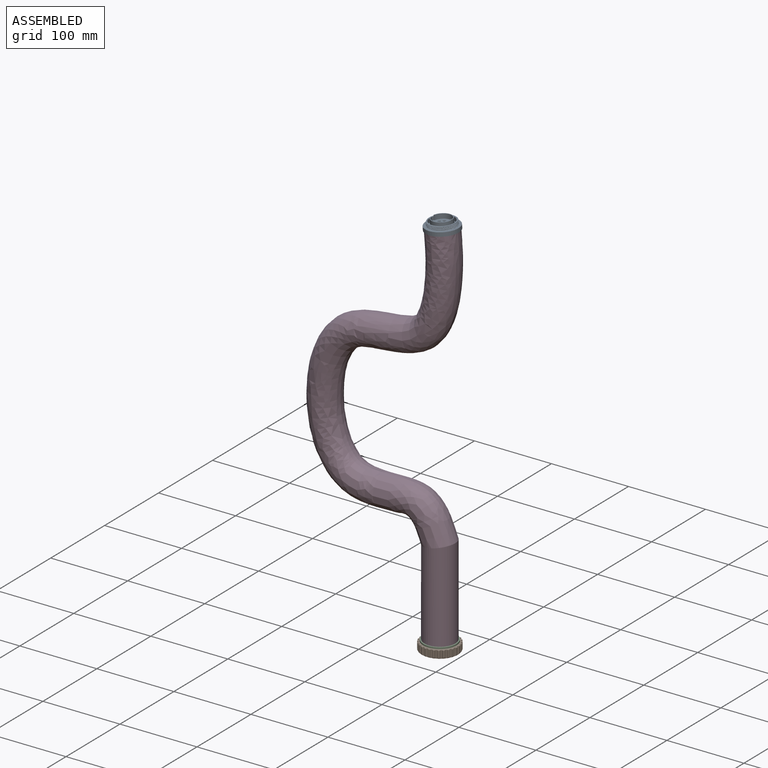
[diagram: assembled view]
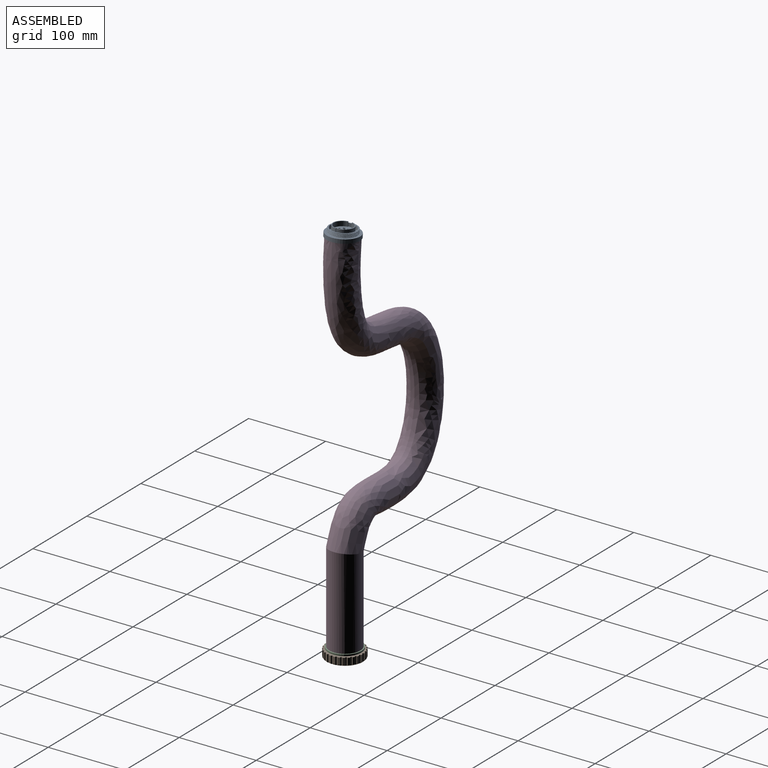
[diagram: assembled view, second angle]
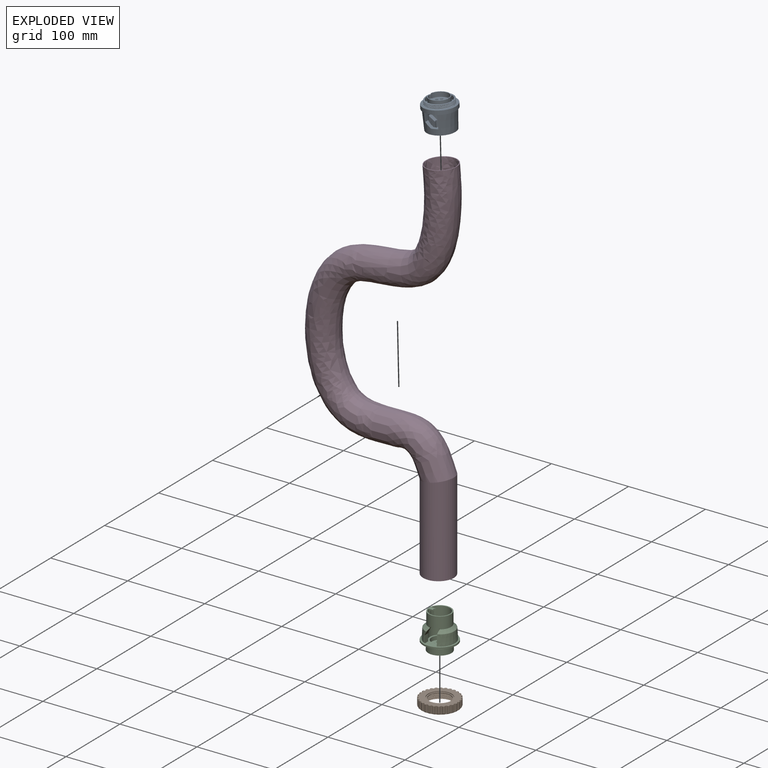
[diagram: exploded view]
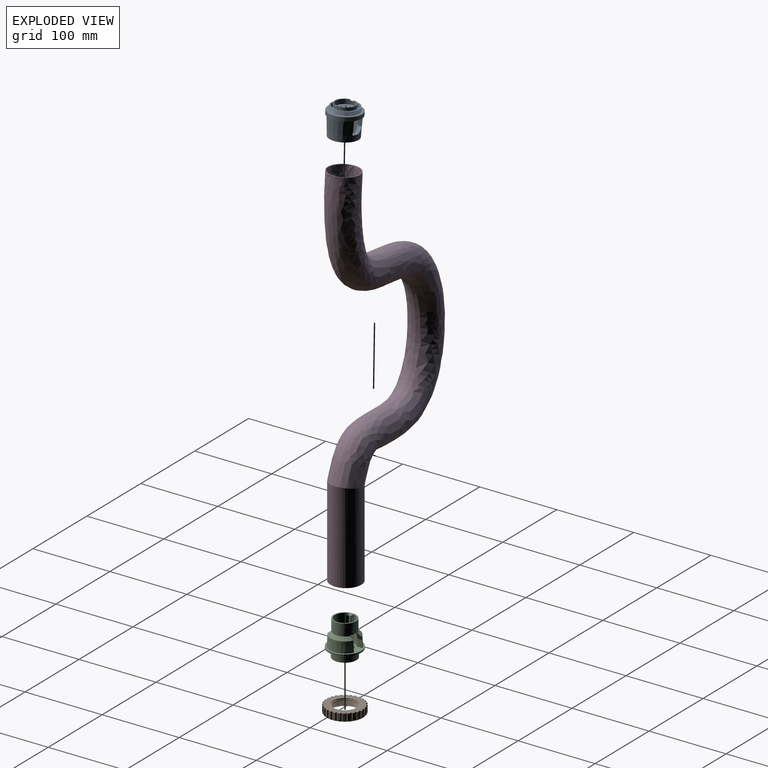
[diagram: exploded view, second angle]
ASSEMBLY  parts=4 mates=3
PART A: 95 faces, bbox 43.4x43.4x39.4 mm
  f0: plane 24.84x24.01mm, normal (0,0,1), area 356.8mm2, adj f4,f5,f11,f16,f17,f18,f19,f20
  f1: cylinder r=10.74mm len=14.33mm, axis (0,0,1), area 78.4mm2, adj f2,f7,f53,f62
  f2: plane 22.98x6mm, normal (0,0,-1), area 69.8mm2, adj f1,f6,f53,f62
  f3: plane 12.22x6.12mm, normal (1,0,0), area 49.3mm2, adj f25,f30,f31,f33,f49,f50,f52
  f4: cylinder r=12mm len=23.48mm, axis (0,0,1), area 196.2mm2, adj f0,f14,f17,f19
  f5: cylinder r=12mm len=23.47mm, axis (0,0,1), area 195.8mm2, adj f0,f14,f18,f20
  f6: cylinder r=14mm len=28mm, axis (0,0,-1), area 1312.5mm2, adj f2,f25,f28,f29,f33,f47,f53,f54
  f7: plane 21.49x21.49mm, normal (0,0,-1), area 331.1mm2, adj f1,f34,f35,f36,f37,f38,f39,f40
  f8: cylinder r=17.5mm len=35mm, axis (0,0,1), area 167.5mm2, adj f9,f10,f13,f26
  f9: bspline ~40.41x35mm, area 370.9mm2, adj f8,f10,f13,f26
  f10: bspline ~40.41x35mm, area 370.8mm2, adj f8,f9,f13,f26
  f11: cylinder r=13mm len=26mm, axis (0,0,1), area 609.1mm2, adj f0,f14,f15,f19,f20,f22,f23,f24
  f12: cylinder r=15.5mm len=31mm, axis (0,0,1), area 486.9mm2, adj f13,f15
  f13: plane 35.23x34.94mm, normal (0,0,1), area 171.7mm2, adj f8,f9,f10,f12
  f14: plane 26.01x25.78mm, normal (0,0,1), area 75.8mm2, adj f4,f5,f11,f16,f17,f18,f19,f20
  f15: plane 31x31mm, normal (0,0,1), area 223.8mm2, adj f11,f12
  f16: plane 6x5mm, normal (0,1,0), area 30mm2, adj f0,f14,f17,f18
  f17: plane 6x0.75mm, normal (-1,0,0), area 4.5mm2, adj f0,f4,f14,f16
  f18: plane 6x0.73mm, normal (1,0,0), area 4.4mm2, adj f0,f5,f14,f16
  f19: plane 6x1.02mm, normal (1,0,0), area 6.1mm2, adj f0,f4,f11,f14
  f20: plane 6x1.02mm, normal (-1,0,0), area 6.1mm2, adj f0,f5,f11,f14
  f21: plane 7x2mm, normal (0.01,-1,0), area 14mm2, adj f14,f22,f23,f24
  f22: plane 7x0.97mm, normal (1,0,0), area 6.8mm2, adj f11,f14,f21,f24
  f23: plane 7x0.98mm, normal (-1,-0.02,0), area 6.9mm2, adj f11,f14,f21,f24
  f24: plane 2.02x1.03mm, normal (0,0,1), area 2mm2, adj f11,f21,f22,f23
  f25: plane 35.38x35.38mm, normal (0,0,-1), area 405.4mm2, adj f3,f6,f27,f28,f29,f30,f31,f32
  f26: plane 42.74x42.74mm, normal (0,0,1), area 459mm2, adj f8,f9,f10,f45
  f27: plane 12.94x1.02mm, normal (-1,0,0), area 12.8mm2, adj f25,f28,f32,f33
  f28: plane 13.65x1.01mm, normal (-1,0,0), area 13.5mm2, adj f6,f25,f27,f33
  f29: plane 13.65x1.02mm, normal (1,0,0), area 13.6mm2, adj f6,f25,f30,f33
  f30: plane 12.93x1.02mm, normal (1,0,0), area 12.8mm2, adj f3,f25,f29,f33,f51
  f31: cylinder r=3.62mm len=7.93mm, axis (0,0,-1), area 43.8mm2, adj f3,f25,f32,f33
  f32: plane 12.22x6.12mm, normal (-1,0,0), area 49.4mm2, adj f25,f27,f31,f33,f49,f50,f51,f52
  f33: plane 9.79x7.27mm, normal (0,-0.57,0.82), area 46.5mm2, adj f3,f6,f27,f28,f29,f30,f31,f32
  f34: cylinder r=1mm len=6.5mm, axis (0,0,1), area 40.8mm2, adj f7,f94
  f35: cylinder r=1mm len=6.5mm, axis (0,0,1), area 40.8mm2, adj f7,f84
  f36: cylinder r=1mm len=6.5mm, axis (0,0,1), area 40.8mm2, adj f7,f78
  f37: cylinder r=1mm len=6.5mm, axis (0,0,1), area 40.8mm2, adj f7,f88
  f38: cylinder r=1mm len=6.5mm, axis (0,0,1), area 40.8mm2, adj f7,f92
  f39: cylinder r=1mm len=6.5mm, axis (0,0,1), area 40.8mm2, adj f7,f82
  f40: cylinder r=1mm len=6.5mm, axis (0,0,1), area 40.8mm2, adj f7,f76
  f41: cylinder r=1mm len=6.5mm, axis (0,0,1), area 40.8mm2, adj f7,f86
  f42: cylinder r=1mm len=6.5mm, axis (0,0,1), area 40.8mm2, adj f7,f80
  f43: cylinder r=1mm len=6.5mm, axis (0,0,1), area 40.8mm2, adj f7,f90
  f44: plane 42.01x42.01mm, normal (0,0,-1), area 251.3mm2, adj f45,f55,f60,f66,f71
  f45: cylinder r=21mm len=42mm, axis (0,0,1), area 659.7mm2, adj f26,f44
  f46: cylinder r=10.74mm len=14.34mm, axis (0,0,1), area 78.4mm2, adj f7,f47,f54,f61
  f47: plane 22.98x6mm, normal (0,0,-1), area 69.8mm2, adj f6,f46,f54,f61
  f48: bspline ~1x0.04mm, area 0mm2, adj f0,f11
  f49: plane 5x2.07mm, normal (0,0,1), area 10.3mm2, adj f3,f32,f51,f52
  f50: plane 5x2.07mm, normal (0,0,-1), area 10.3mm2, adj f3,f32,f51,f52
  f51: plane 5.97x5mm, normal (0,-1,0), area 29.9mm2, adj f30,f32,f49,f50
  f52: plane 5.97x5mm, normal (0,1,0), area 29.9mm2, adj f3,f32,f49,f50
  f53: plane 12.03x10.19mm, normal (0,-1,0), area 85.9mm2, adj f1,f2,f6,f55,f56,f65
  f54: plane 17.77x10.33mm, normal (0,1,0), area 113.2mm2, adj f6,f46,f47,f55,f57,f72
  f55: plane 16.07x11.91mm, normal (0,0,-1), area 140.5mm2, adj f7,f44,f53,f54
  f56: plane 8.28x6.92mm, normal (0,-0.57,0.82), area 43.3mm2, adj f6,f53,f57,f64
  f57: plane 8x6.59mm, normal (0,0,1), area 34.2mm2, adj f6,f54,f56,f63
  f58: plane 8x6.59mm, normal (0,0,1), area 34.2mm2, adj f6,f59,f61,f69
  f59: plane 8.28x6.92mm, normal (0,-0.57,0.82), area 43.3mm2, adj f6,f58,f62,f68
  f60: plane 16.07x11.91mm, normal (0,0,-1), area 140.5mm2, adj f7,f44,f61,f62
  f61: plane 17.77x10.33mm, normal (0,1,0), area 113.2mm2, adj f6,f46,f47,f58,f60,f70
  f62: plane 12.03x10.19mm, normal (0,-1,0), area 85.9mm2, adj f1,f2,f6,f59,f60,f67
  f63: bspline ~8.21x2.36mm, area 4.2mm2, adj f57,f64,f72,f74
  f64: bspline ~8.22x5.63mm, area 5mm2, adj f56,f63,f65,f74
  f65: bspline ~11.93x1.14mm, area 6mm2, adj f53,f64,f66,f74
  f66: cone r=19mm half-angle=87deg, axis (0,0,-1), area 21.9mm2, adj f44,f65,f67,f74
  f67: bspline ~11.93x1.14mm, area 6mm2, adj f62,f66,f68,f74
  f68: bspline ~8.22x5.63mm, area 5mm2, adj f59,f67,f69,f74
  f69: bspline ~8.21x2.36mm, area 4.2mm2, adj f58,f68,f70,f74
  f70: bspline ~17.53x1.47mm, area 8.8mm2, adj f61,f69,f71,f74
  f71: cone r=19mm half-angle=87deg, axis (0,0,-1), area 21.9mm2, adj f44,f70,f72,f74
  f72: bspline ~17.54x1.47mm, area 8.8mm2, adj f54,f63,f71,f74
  f73: cone r=17.69mm half-angle=87deg, axis (0,0,-1), area 56.4mm2, adj f25,f74
  f74: cone r=19.5mm half-angle=3deg, axis (0,0,1), area 2416.1mm2, adj f63,f64,f65,f66,f67,f68,f69,f70
  f75: cylinder r=1.75mm len=3.5mm, axis (0,0,1), area 5.5mm2, adj f0,f76
  f76: plane 3.5x3.5mm, normal (0,0,1), area 6.5mm2, adj f40,f75
  f77: cylinder r=1.75mm len=3.5mm, axis (0,0,1), area 5.5mm2, adj f0,f78
  f78: plane 3.5x3.5mm, normal (0,0,1), area 6.5mm2, adj f36,f77
  f79: cylinder r=1.75mm len=3.5mm, axis (0,0,1), area 5.5mm2, adj f0,f80
  f80: plane 3.5x3.5mm, normal (0,0,1), area 6.5mm2, adj f42,f79
  f81: cylinder r=1.75mm len=3.5mm, axis (0,0,1), area 5.5mm2, adj f0,f82
  f82: plane 3.5x3.5mm, normal (0,0,1), area 6.5mm2, adj f39,f81
  f83: cylinder r=1.75mm len=3.5mm, axis (0,0,1), area 5.5mm2, adj f0,f84
  f84: plane 3.5x3.5mm, normal (0,0,1), area 6.5mm2, adj f35,f83
  f85: cylinder r=1.75mm len=3.5mm, axis (0,0,1), area 5.5mm2, adj f0,f86
  f86: plane 3.5x3.5mm, normal (0,0,1), area 6.5mm2, adj f41,f85
  f87: cylinder r=1.75mm len=3.5mm, axis (0,0,1), area 5.5mm2, adj f0,f88
  f88: plane 3.5x3.5mm, normal (0,0,1), area 6.5mm2, adj f37,f87
  f89: cylinder r=1.75mm len=3.5mm, axis (0,0,1), area 5.5mm2, adj f0,f90
  f90: plane 3.5x3.5mm, normal (0,0,1), area 6.5mm2, adj f43,f89
  f91: cylinder r=1.75mm len=3.5mm, axis (0,0,1), area 5.5mm2, adj f0,f92
  f92: plane 3.5x3.5mm, normal (0,0,1), area 6.5mm2, adj f38,f91
  f93: cylinder r=1.75mm len=3.5mm, axis (0,0,1), area 5.5mm2, adj f0,f94
  f94: plane 3.5x3.5mm, normal (0,0,1), area 6.5mm2, adj f34,f93
PART B: 72 faces, bbox 53.1x53.1x11.3 mm
  f0: torus R=22.22mm, axis (0,0,1), area 268.9mm2, adj f1,f2,f3,f4,f5,f6,f7,f8
  f1: cylinder r=24.22mm len=8mm, axis (0,0,1), area 19.1mm2, adj f0,f39,f70,f71
  f2: cylinder r=24.22mm len=8mm, axis (0,0,1), area 19.1mm2, adj f0,f39,f69,f70
  f3: cylinder r=24.22mm len=8mm, axis (0,0,1), area 19.1mm2, adj f0,f39,f68,f69
  f4: cylinder r=24.22mm len=8mm, axis (0,0,1), area 19.1mm2, adj f0,f39,f67,f68
  f5: cylinder r=24.22mm len=8mm, axis (0,0,1), area 19.1mm2, adj f0,f39,f66,f67
  f6: cylinder r=24.22mm len=8mm, axis (0,0,1), area 19.1mm2, adj f0,f39,f65,f66
  f7: cylinder r=24.22mm len=8mm, axis (0,0,1), area 19.1mm2, adj f0,f39,f64,f65
  f8: cylinder r=24.22mm len=8mm, axis (0,0,1), area 19.1mm2, adj f0,f39,f63,f64
  f9: cylinder r=24.22mm len=8mm, axis (0,0,1), area 19.1mm2, adj f0,f39,f62,f63
  f10: cylinder r=24.22mm len=8mm, axis (0,0,1), area 19.1mm2, adj f0,f39,f61,f62
  f11: cylinder r=24.22mm len=8mm, axis (0,0,1), area 19.1mm2, adj f0,f39,f60,f61
  f12: cylinder r=24.22mm len=8mm, axis (0,0,1), area 19.1mm2, adj f0,f39,f59,f60
  f13: cylinder r=24.22mm len=8mm, axis (0,0,1), area 19.1mm2, adj f0,f39,f58,f59
  f14: cylinder r=24.22mm len=8mm, axis (0,0,1), area 19.1mm2, adj f0,f39,f57,f58
  f15: cylinder r=24.22mm len=8mm, axis (0,0,1), area 19.1mm2, adj f0,f39,f56,f57
  f16: cylinder r=24.22mm len=8mm, axis (0,0,1), area 19.1mm2, adj f0,f39,f55,f56
  f17: cylinder r=24.22mm len=8mm, axis (0,0,1), area 19.1mm2, adj f0,f39,f54,f55
  f18: cylinder r=24.22mm len=8mm, axis (0,0,1), area 19.1mm2, adj f0,f39,f53,f54
  f19: cylinder r=24.22mm len=8mm, axis (0,0,1), area 19.1mm2, adj f0,f39,f52,f53
  f20: cylinder r=24.22mm len=8mm, axis (0,0,1), area 19.1mm2, adj f0,f39,f51,f52
  f21: cylinder r=24.22mm len=8mm, axis (0,0,1), area 19.1mm2, adj f0,f39,f50,f51
  f22: cylinder r=24.22mm len=8mm, axis (0,0,1), area 19.1mm2, adj f0,f39,f49,f50
  f23: cylinder r=24.22mm len=8mm, axis (0,0,1), area 19.1mm2, adj f0,f39,f48,f49
  f24: cylinder r=24.22mm len=8mm, axis (0,0,1), area 19.1mm2, adj f0,f39,f47,f48
  f25: cylinder r=24.22mm len=8mm, axis (0,0,1), area 19.1mm2, adj f0,f39,f46,f47
  f26: cylinder r=24.22mm len=8mm, axis (0,0,1), area 19.1mm2, adj f0,f39,f45,f46
  f27: cylinder r=24.22mm len=8mm, axis (0,0,1), area 19.1mm2, adj f0,f39,f44,f45
  f28: cylinder r=24.22mm len=8mm, axis (0,0,1), area 19.1mm2, adj f0,f39,f44,f71
  f29: cylinder r=17.22mm len=34.44mm, axis (0,0,1), area 97.1mm2, adj f33,f35,f41,f42,f43
  f30: cylinder r=17.22mm len=34.44mm, axis (0,0,1), area 52.5mm2, adj f31,f34,f40,f42,f43
  f31: cylinder r=17.22mm len=34.44mm, axis (0,0,1), area 52.7mm2, adj f30,f32,f42,f43
  f32: cylinder r=17.22mm len=34.44mm, axis (0,0,1), area 52.7mm2, adj f31,f33,f42,f43
  f33: cylinder r=17.22mm len=34.44mm, axis (0,0,1), area 52.7mm2, adj f29,f32,f42,f43
  f34: cylinder r=17.22mm len=17.64mm, axis (0,0,1), area 5.5mm2, adj f30,f40,f43
  f35: plane 34.44x34.44mm, normal (0,0,-1), area 337.6mm2, adj f29,f36
  f36: cylinder r=13.75mm len=27.5mm, axis (0,0,1), area 86.4mm2, adj f35,f37
  f37: plane 30.5x30.5mm, normal (0,0,1), area 136.7mm2, adj f36,f38
  f38: cylinder r=15.25mm len=30.5mm, axis (0,0,1), area 95.8mm2, adj f37,f39
  f39: plane 48.34x48.34mm, normal (0,0,1), area 1011.3mm2, adj f1,f2,f3,f4,f5,f6,f7,f8
  f40: plane 45.13x45.13mm, normal (0,0,-1), area 583.1mm2, adj f0,f30,f34,f42,f43
  f41: plane 1.1x0.93mm, normal (0.25,-0.97,0), area 0.5mm2, adj f29,f42,f43
  f42: bspline ~41.97x36.35mm, area 589.1mm2, adj f29,f30,f31,f32,f33,f40,f41,f43
  f43: bspline ~41.97x36.35mm, area 546.6mm2, adj f29,f30,f31,f32,f33,f34,f40,f41
  f44: cylinder r=1.53mm len=9.94mm, axis (0,0,1), area 45mm2, adj f0,f27,f28,f39
  f45: cylinder r=1.53mm len=9.94mm, axis (0,0,1), area 45mm2, adj f0,f26,f27,f39
  f46: cylinder r=1.53mm len=9.94mm, axis (0,0,1), area 45mm2, adj f0,f25,f26,f39
  f47: cylinder r=1.53mm len=9.94mm, axis (0,0,1), area 45mm2, adj f0,f24,f25,f39
  f48: cylinder r=1.53mm len=9.94mm, axis (0,0,1), area 45mm2, adj f0,f23,f24,f39
  f49: cylinder r=1.53mm len=9.94mm, axis (0,0,1), area 45mm2, adj f0,f22,f23,f39
  f50: cylinder r=1.53mm len=9.94mm, axis (0,0,1), area 45mm2, adj f0,f21,f22,f39
  f51: cylinder r=1.53mm len=9.94mm, axis (0,0,1), area 45mm2, adj f0,f20,f21,f39
  f52: cylinder r=1.53mm len=9.94mm, axis (0,0,1), area 45mm2, adj f0,f19,f20,f39
  f53: cylinder r=1.53mm len=9.94mm, axis (0,0,1), area 45mm2, adj f0,f18,f19,f39
  f54: cylinder r=1.53mm len=9.94mm, axis (0,0,1), area 45mm2, adj f0,f17,f18,f39
  f55: cylinder r=1.53mm len=9.94mm, axis (0,0,1), area 45mm2, adj f0,f16,f17,f39
  f56: cylinder r=1.53mm len=9.94mm, axis (0,0,1), area 45mm2, adj f0,f15,f16,f39
  f57: cylinder r=1.53mm len=9.94mm, axis (0,0,1), area 45mm2, adj f0,f14,f15,f39
  f58: cylinder r=1.53mm len=9.94mm, axis (0,0,1), area 45mm2, adj f0,f13,f14,f39
  f59: cylinder r=1.53mm len=9.94mm, axis (0,0,1), area 45mm2, adj f0,f12,f13,f39
  f60: cylinder r=1.53mm len=9.94mm, axis (0,0,1), area 45mm2, adj f0,f11,f12,f39
  f61: cylinder r=1.53mm len=9.94mm, axis (0,0,1), area 45mm2, adj f0,f10,f11,f39
  f62: cylinder r=1.53mm len=9.94mm, axis (0,0,1), area 45mm2, adj f0,f9,f10,f39
  f63: cylinder r=1.53mm len=9.94mm, axis (0,0,1), area 45mm2, adj f0,f8,f9,f39
  f64: cylinder r=1.53mm len=9.94mm, axis (0,0,1), area 45mm2, adj f0,f7,f8,f39
  f65: cylinder r=1.53mm len=9.94mm, axis (0,0,1), area 42.1mm2, adj f0,f6,f7,f39
  f66: cylinder r=1.53mm len=9.94mm, axis (0,0,1), area 45mm2, adj f0,f5,f6,f39
  f67: cylinder r=1.53mm len=9.94mm, axis (0,0,1), area 45mm2, adj f0,f4,f5,f39
  f68: cylinder r=1.53mm len=9.94mm, axis (0,0,1), area 45mm2, adj f0,f3,f4,f39
  f69: cylinder r=1.53mm len=9.94mm, axis (0,0,1), area 45mm2, adj f0,f2,f3,f39
  f70: cylinder r=1.53mm len=9.94mm, axis (0,0,1), area 45mm2, adj f0,f1,f2,f39
  f71: cylinder r=1.53mm len=9.94mm, axis (0,0,1), area 45mm2, adj f0,f1,f28,f39
PART C: 68 faces, bbox 43.2x43.2x45.9 mm
  f0: plane 29x29mm, normal (0,0,1), area 156.4mm2, adj f3,f4,f6,f37,f65
  f1: cone r=19.5mm half-angle=3deg, axis (0,0,-1), area 597.4mm2, adj f56,f58,f61,f67
  f2: cone r=19.5mm half-angle=3deg, axis (0,0,-1), area 616mm2, adj f53,f54,f55,f57,f61,f66
  f3: plane 21.1x6.45mm, normal (1,0,0), area 88.7mm2, adj f0,f6,f37,f38,f41,f42,f43,f44
  f4: plane 21.1x6.45mm, normal (-1,0,0), area 88.7mm2, adj f0,f6,f37,f38,f41,f42,f43,f44
  f5: plane 36.72x26mm, normal (0,0,1), area 348.9mm2, adj f6,f40,f45,f48,f49,f52,f63,f64
  f6: cylinder r=13mm len=34mm, axis (0,0,1), area 2051.4mm2, adj f0,f3,f4,f5,f38,f45,f46,f47
  f7: plane 27x26.75mm, normal (0,0,-1), area 202mm2, adj f15,f16,f17,f18,f20,f21,f22,f23
  f8: plane 37.93x37.93mm, normal (0,0,-1), area 423.3mm2, adj f9,f59
  f9: cylinder r=15mm len=30mm, axis (0,0,1), area 107.1mm2, adj f8,f10
  f10: plane 30x30mm, normal (0,0,-1), area 175.9mm2, adj f9,f11
  f11: cylinder r=13mm len=26mm, axis (0,0,1), area 163.4mm2, adj f10,f12
  f12: plane 30x30mm, normal (0,0,1), area 175.9mm2, adj f11,f13
  f13: cylinder r=15mm len=30mm, axis (0,0,1), area 706.9mm2, adj f12,f14
  f14: plane 30x30mm, normal (0,0,-1), area 471.2mm2, adj f13,f15,f20,f21,f22,f23,f24,f25
  f15: cylinder r=13.5mm len=27mm, axis (0,0,1), area 442.3mm2, adj f7,f14,f17,f18,f19,f20,f21
  f16: plane 5x1.5mm, normal (0,1,0), area 7.5mm2, adj f7,f17,f18,f19
  f17: plane 5x1.48mm, normal (1,0,0), area 7.4mm2, adj f7,f15,f16,f19
  f18: plane 5x1.48mm, normal (-1,0,0), area 7.4mm2, adj f7,f15,f16,f19
  f19: plane 1.5x1.5mm, normal (0,0,-1), area 2.2mm2, adj f15,f16,f17,f18
  f20: plane 5.64x4.07mm, normal (-1,0,0), area 22.9mm2, adj f7,f14,f15,f22
  f21: plane 5.64x4.07mm, normal (1,0,0), area 22.9mm2, adj f7,f14,f15,f24
  f22: plane 5.64x3.06mm, normal (0,1,0), area 17.3mm2, adj f7,f14,f20,f23
  f23: cylinder r=10.75mm len=19.18mm, axis (0,0,-1), area 134.3mm2, adj f7,f14,f22,f36
  f24: plane 5.64x3.06mm, normal (0,1,0), area 17.3mm2, adj f7,f14,f21,f25
  f25: cylinder r=10.75mm len=19.18mm, axis (0,0,-1), area 134.3mm2, adj f7,f14,f24,f36
  f26: cylinder r=1mm len=6.64mm, axis (0,0,-1), area 41.7mm2, adj f14,f39
  f27: cylinder r=1mm len=6.64mm, axis (0,0,-1), area 41.7mm2, adj f14,f39
  f28: cylinder r=1mm len=6.64mm, axis (0,0,-1), area 41.7mm2, adj f14,f39
  f29: cylinder r=1mm len=6.64mm, axis (0,0,-1), area 41.7mm2, adj f14,f39
  f30: cylinder r=1mm len=6.64mm, axis (0,0,-1), area 41.7mm2, adj f14,f39
  f31: cylinder r=1mm len=6.64mm, axis (0,0,-1), area 41.7mm2, adj f14,f39
  f32: cylinder r=1mm len=6.64mm, axis (0,0,-1), area 41.7mm2, adj f14,f39
  f33: cylinder r=1mm len=6.64mm, axis (0,0,-1), area 41.7mm2, adj f14,f39
  f34: cylinder r=1mm len=6.64mm, axis (0,0,-1), area 41.7mm2, adj f14,f39
  f35: cylinder r=1mm len=6.64mm, axis (0,0,-1), area 41.7mm2, adj f14,f39
  f36: plane 7.99x5.64mm, normal (0,-1,0), area 45.1mm2, adj f7,f14,f23,f25
  f37: extruded ~13.39x5mm, area 78.5mm2, adj f0,f3,f4,f38
  f38: plane 11.59x6.69mm, normal (0,-0.87,-0.5), area 53.6mm2, adj f3,f4,f6,f37
  f39: plane 21.48x21.48mm, normal (0,0,1), area 331mm2, adj f26,f27,f28,f29,f30,f31,f32,f33
  f40: cylinder r=10.74mm len=21.48mm, axis (0,0,-1), area 337.4mm2, adj f5,f39
  f41: plane 5.13x5mm, normal (0,-1,0), area 25.7mm2, adj f3,f4,f42,f43
  f42: plane 5x2.21mm, normal (0,0,1), area 11.1mm2, adj f3,f4,f41,f44
  f43: plane 5x2.21mm, normal (0,0,-1), area 11.1mm2, adj f3,f4,f41,f44
  f44: plane 5.13x5mm, normal (0,1,0), area 25.7mm2, adj f3,f4,f42,f43
  f45: plane 20.25x7.11mm, normal (0,1,0), area 115.2mm2, adj f5,f6,f46,f58,f64,f65,f67
  f46: plane 10x4.25mm, normal (0,0,-1), area 15.8mm2, adj f6,f45,f47,f65
  f47: plane 10.52x7.39mm, normal (0,-0.87,-0.5), area 54.8mm2, adj f6,f46,f48,f53,f65,f66
  f48: plane 9.61x6.88mm, normal (0,-1,0), area 63.4mm2, adj f5,f6,f47,f54,f64
  f49: plane 9.61x6.88mm, normal (0,-1,0), area 63.4mm2, adj f5,f6,f50,f57,f63
  f50: plane 10.52x7.39mm, normal (0,-0.87,-0.5), area 54.8mm2, adj f6,f49,f51,f55,f65,f66
  f51: plane 10x4.25mm, normal (0,0,-1), area 15.8mm2, adj f6,f50,f52,f65
  f52: plane 20.25x7.11mm, normal (0,1,0), area 115.2mm2, adj f5,f6,f51,f56,f63,f65,f67
  f53: bspline ~5.93x3.62mm, area 3.3mm2, adj f2,f47,f54,f66
  f54: bspline ~9.63x1.01mm, area 4.4mm2, adj f2,f48,f53,f61,f64
  f55: bspline ~5.93x3.62mm, area 3.3mm2, adj f2,f50,f57,f66
  f56: bspline ~20.03x1.62mm, area 7.2mm2, adj f1,f52,f61,f63,f67
  f57: bspline ~9.63x1.01mm, area 4.4mm2, adj f2,f49,f55,f61,f63
  f58: bspline ~20.03x1.62mm, area 7.2mm2, adj f1,f45,f61,f64,f67
  f59: cone r=18.97mm half-angle=87deg, axis (0,0,1), area 60.4mm2, adj f8,f62
  f60: cylinder r=21.47mm len=42.93mm, axis (0,0,1), area 269.7mm2, adj f61,f62
  f61: plane 42.93x42.93mm, normal (0,0,1), area 270.9mm2, adj f1,f2,f54,f56,f57,f58,f60,f63
  f62: plane 42.93x42.93mm, normal (0,0,-1), area 257.2mm2, adj f59,f60
  f63: cone r=18.36mm half-angle=43.5deg, axis (0,0,1), area 23.5mm2, adj f5,f49,f52,f56,f57,f61
  f64: cone r=18.36mm half-angle=43.5deg, axis (0,0,1), area 23.5mm2, adj f5,f45,f48,f54,f58,f61
  f65: cylinder r=14.5mm len=29mm, axis (0,0,1), area 1350.2mm2, adj f0,f45,f46,f47,f50,f51,f52,f66
  f66: cone r=13.37mm half-angle=46.5deg, axis (0,0,-1), area 253.4mm2, adj f2,f47,f50,f53,f55,f65
  f67: cone r=13.37mm half-angle=46.5deg, axis (0,0,-1), area 200mm2, adj f1,f45,f52,f56,f58,f65
PART D: 6 faces, bbox 195.1x80x483.3 mm
  f0: cylinder r=19mm len=117.56mm, axis (0,0,-1), area 13618.1mm2, adj f2,f3
  f1: cylinder r=20mm len=117.75mm, axis (0,0,-1), area 14334.8mm2, adj f2,f5
  f2: plane 40x40mm, normal (0,0,-1), area 122.5mm2, adj f0,f1
  f3: bspline ~380.52x193.15mm, area 66460.6mm2, adj f0,f4
  f4: plane 40x39.9mm, normal (-0.07,0,1), area 122.5mm2, adj f3,f5
  f5: bspline ~381.14x195.15mm, area 69962.4mm2, adj f1,f4
PLACE A rot(axis=(-0.04,-0.04,1),90.1deg) t=(-34.26,18.72,255.13)mm
PLACE B rot(axis=(0,0,-1),180deg) t=(-37.81,18.72,-211.25)mm
PLACE C rot(axis=(0,0,1),90deg) t=(-37.81,18.72,-211.25)mm
PLACE D t=(-37.81,18.72,-226.72)mm
MATE revolute B.f1 <-> C.f59  axis (0,0,-1) through (-37.81,18.72,-231.39)mm
MATE fastened C.f6 <-> D.f0  axis (0,0,1) through (-37.81,18.72,-226.72)mm
MATE fastened A.f1 <-> D.f4  axis (0.07,0,-1) through (-34.26,18.72,255.13)mm
